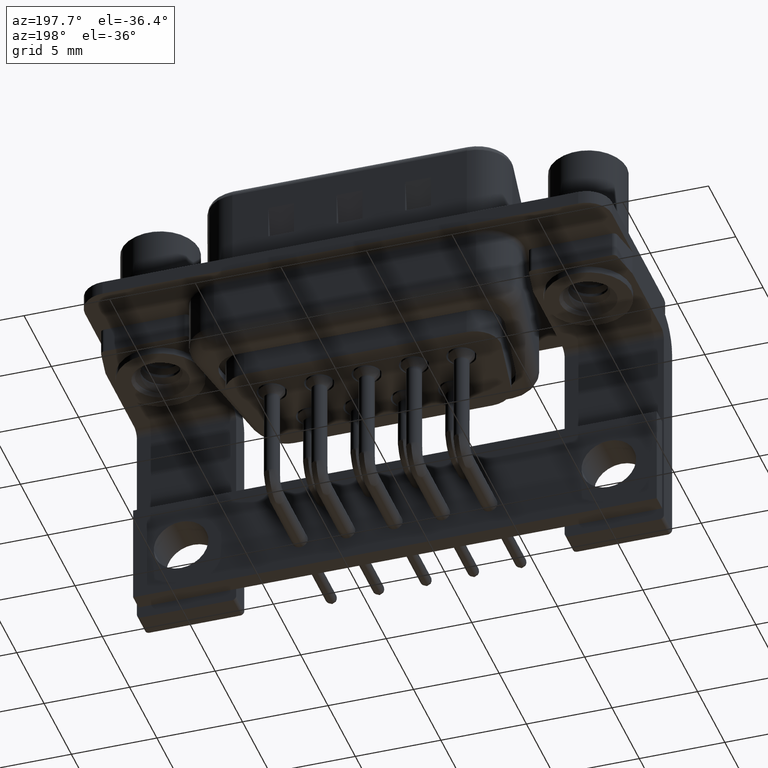
[diagram: clean part render]
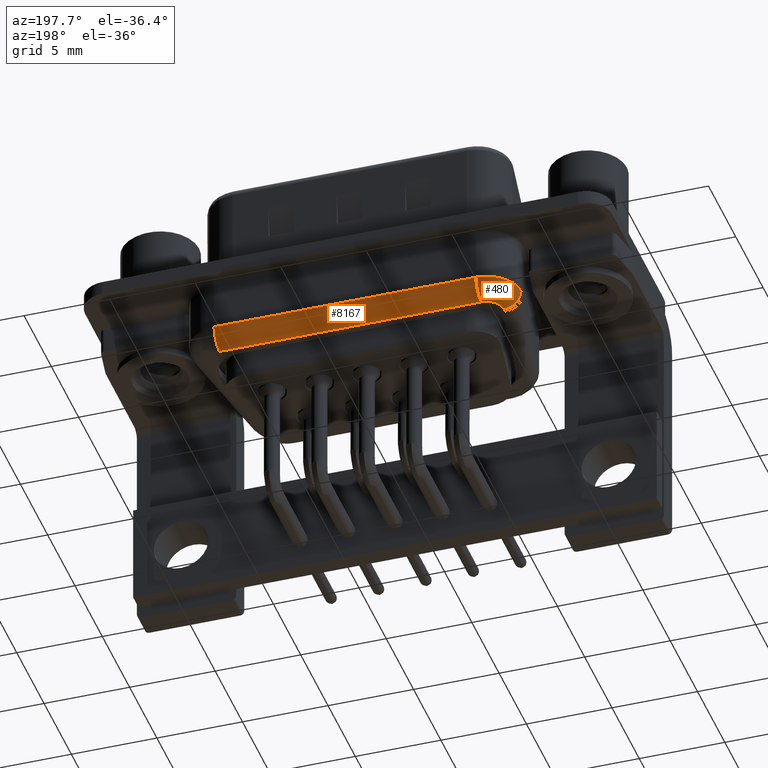
[diagram: same view with one multi-face feature highlighted, each face labeled with its STEP entity id]
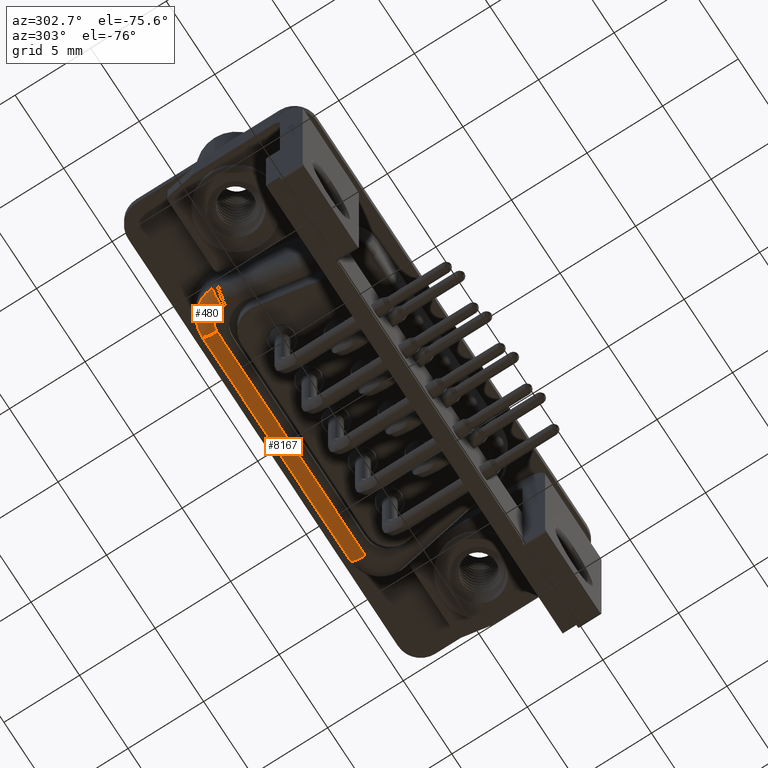
[diagram: same view with one multi-face feature highlighted, each face labeled with its STEP entity id]
A machine part, auxiliary view. The highlighted faces form ONE feature: a constant-radius fillet chain: 2 tangent blend faces with common blend radius 1 mm. The faces share edges in the B-rep.
A second angle (auxiliary view) of the same feature is appended — it is thin or edge-on in the first view.
Their STEP definitions:
[1] entity #8167 (Cylinder):
#1219 = ORIENTED_EDGE ( 'NONE', *, *, #12657, .F. ) ;
#1310 = ORIENTED_EDGE ( 'NONE', *, *, #5093, .F. ) ;
#2117 = CYLINDRICAL_SURFACE ( 'NONE', #14743, 1.000000000000000000 ) ;
#3088 = VERTEX_POINT ( 'NONE', #18647 ) ;
#4247 = VERTEX_POINT ( 'NONE', #17074 ) ;
#5093 = EDGE_CURVE ( 'NONE', #18664, #13876, #8900, .T. ) ;
#5285 = CARTESIAN_POINT ( 'NONE',  ( 20.15000000000000200, 5.399999999999995900, -3.499999999999999600 ) ) ;
#5904 = VECTOR ( 'NONE', #19404, 1000.000000000000000 ) ;
#6852 = EDGE_CURVE ( 'NONE', #4247, #3088, #10484, .T. ) ;
#7320 = CARTESIAN_POINT ( 'NONE',  ( 6.049023468817512800, 4.399999999999995900, -4.500000000000000000 ) ) ;
#7729 = DIRECTION ( 'NONE',  ( -1.000000000000000000, 0.0000000000000000000, 0.0000000000000000000 ) ) ;
#8167 = ADVANCED_FACE ( 'NONE', ( #11827 ), #2117, .T. ) ;
#8351 = AXIS2_PLACEMENT_3D ( 'NONE', #18063, #7729, #19828 ) ;
#8428 = CARTESIAN_POINT ( 'NONE',  ( 20.15000000000000200, 5.399999999999995900, -3.499999999999999600 ) ) ;
#8482 = CIRCLE ( 'NONE', #8351, 1.000000000000000000 ) ;
#8900 = LINE ( 'NONE', #8428, #13505 ) ;
#9171 = ORIENTED_EDGE ( 'NONE', *, *, #11028, .T. ) ;
#10248 = DIRECTION ( 'NONE',  ( -1.000000000000000000, 0.0000000000000000000, 0.0000000000000000000 ) ) ;
#10484 = LINE ( 'NONE', #7320, #5904 ) ;
#11028 = EDGE_CURVE ( 'NONE', #18664, #3088, #8482, .T. ) ;
#11329 = CIRCLE ( 'NONE', #11569, 1.000000000000000000 ) ;
#11569 = AXIS2_PLACEMENT_3D ( 'NONE', #20640, #10248, #22401 ) ;
#11827 = FACE_OUTER_BOUND ( 'NONE', #14803, .T. ) ;
#12657 = EDGE_CURVE ( 'NONE', #13876, #4247, #11329, .T. ) ;
#12944 = ORIENTED_EDGE ( 'NONE', *, *, #6852, .F. ) ;
#13109 = DIRECTION ( 'NONE',  ( 1.000000000000000000, 0.0000000000000000000, 0.0000000000000000000 ) ) ;
#13505 = VECTOR ( 'NONE', #22330, 1000.000000000000000 ) ;
#13876 = VERTEX_POINT ( 'NONE', #16981 ) ;
#14743 = AXIS2_PLACEMENT_3D ( 'NONE', #21776, #13109, #14776 ) ;
#14776 = DIRECTION ( 'NONE',  ( 0.0000000000000000000, 0.0000000000000000000, -1.000000000000000000 ) ) ;
#14803 = EDGE_LOOP ( 'NONE', ( #9171, #12944, #1219, #1310 ) ) ;
#16981 = CARTESIAN_POINT ( 'NONE',  ( 4.850000000000006800, 5.399999999999998600, -3.499999999999999600 ) ) ;
#17074 = CARTESIAN_POINT ( 'NONE',  ( 4.850000000000006800, 4.399999999999995900, -4.500000000000000000 ) ) ;
#18063 = CARTESIAN_POINT ( 'NONE',  ( 20.15000000000000200, 4.399999999999998600, -3.499999999999999600 ) ) ;
#18647 = CARTESIAN_POINT ( 'NONE',  ( 20.15000000000000200, 4.399999999999995900, -4.500000000000000000 ) ) ;
#18664 = VERTEX_POINT ( 'NONE', #5285 ) ;
#19404 = DIRECTION ( 'NONE',  ( 1.000000000000000000, 0.0000000000000000000, 0.0000000000000000000 ) ) ;
#19828 = DIRECTION ( 'NONE',  ( 0.0000000000000000000, 0.0000000000000000000, 1.000000000000000000 ) ) ;
#20640 = CARTESIAN_POINT ( 'NONE',  ( 4.850000000000006800, 4.399999999999995900, -3.499999999999999600 ) ) ;
#21776 = CARTESIAN_POINT ( 'NONE',  ( 6.049023468817512800, 4.399999999999995900, -3.499999999999999600 ) ) ;
#22330 = DIRECTION ( 'NONE',  ( -1.000000000000000000, -0.0000000000000000000, -0.0000000000000000000 ) ) ;
#22401 = DIRECTION ( 'NONE',  ( 0.0000000000000000000, 0.0000000000000000000, 1.000000000000000000 ) ) ;
[2] entity #480 (Torus):
#480 = ADVANCED_FACE ( 'NONE', ( #19820 ), #10607, .T. ) ;
#1368 = DIRECTION ( 'NONE',  ( 1.000000000000000000, 0.0000000000000000000, 0.0000000000000000000 ) ) ;
#1673 = CARTESIAN_POINT ( 'NONE',  ( 4.850000000000006800, 3.399999999999995900, -3.499999999999999600 ) ) ;
#2394 = EDGE_CURVE ( 'NONE', #9772, #4247, #10799, .T. ) ;
#3089 = DIRECTION ( 'NONE',  ( -1.000000000000000000, 0.0000000000000000000, 0.0000000000000000000 ) ) ;
#3177 = AXIS2_PLACEMENT_3D ( 'NONE', #22107, #11703, #1368 ) ;
#3309 = CARTESIAN_POINT ( 'NONE',  ( 3.850000000000004100, 3.399999999999995900, -3.499999999999999600 ) ) ;
#3499 = DIRECTION ( 'NONE',  ( 1.224646799147353200E-016, 1.000000000000000000, 0.0000000000000000000 ) ) ;
#4247 = VERTEX_POINT ( 'NONE', #17074 ) ;
#4279 = EDGE_CURVE ( 'NONE', #9772, #4747, #21976, .T. ) ;
#4328 = AXIS2_PLACEMENT_3D ( 'NONE', #1673, #15605, #12518 ) ;
#4747 = VERTEX_POINT ( 'NONE', #7869 ) ;
#6540 = AXIS2_PLACEMENT_3D ( 'NONE', #3309, #3499, #3089 ) ;
#7181 = EDGE_LOOP ( 'NONE', ( #7531, #19153, #11402, #11009 ) ) ;
#7531 = ORIENTED_EDGE ( 'NONE', *, *, #2394, .F. ) ;
#7869 = CARTESIAN_POINT ( 'NONE',  ( 2.850000000000004100, 3.399999999999995900, -3.499999999999999600 ) ) ;
#8647 = CARTESIAN_POINT ( 'NONE',  ( 4.850000000000006800, 3.399999999999995900, -4.500000000000000000 ) ) ;
#8722 = DIRECTION ( 'NONE',  ( -0.0000000000000000000, 0.0000000000000000000, -1.000000000000000000 ) ) ;
#9108 = DIRECTION ( 'NONE',  ( 1.000000000000000000, 0.0000000000000000000, 0.0000000000000000000 ) ) ;
#9772 = VERTEX_POINT ( 'NONE', #14056 ) ;
#10162 = EDGE_CURVE ( 'NONE', #13876, #4747, #11504, .T. ) ;
#10248 = DIRECTION ( 'NONE',  ( -1.000000000000000000, 0.0000000000000000000, 0.0000000000000000000 ) ) ;
#10607 = TOROIDAL_SURFACE ( 'NONE', #4328, 1.000000000000003100, 1.000000000000000000 ) ;
#10799 = CIRCLE ( 'NONE', #14364, 1.000000000000002700 ) ;
#11009 = ORIENTED_EDGE ( 'NONE', *, *, #12657, .T. ) ;
#11329 = CIRCLE ( 'NONE', #11569, 1.000000000000000000 ) ;
#11402 = ORIENTED_EDGE ( 'NONE', *, *, #10162, .F. ) ;
#11504 = CIRCLE ( 'NONE', #3177, 2.000000000000003600 ) ;
#11569 = AXIS2_PLACEMENT_3D ( 'NONE', #20640, #10248, #22401 ) ;
#11703 = DIRECTION ( 'NONE',  ( 0.0000000000000000000, -0.0000000000000000000, 1.000000000000000000 ) ) ;
#12518 = DIRECTION ( 'NONE',  ( 1.000000000000000000, 0.0000000000000000000, 0.0000000000000000000 ) ) ;
#12657 = EDGE_CURVE ( 'NONE', #13876, #4247, #11329, .T. ) ;
#13876 = VERTEX_POINT ( 'NONE', #16981 ) ;
#14056 = CARTESIAN_POINT ( 'NONE',  ( 3.850000000000004100, 3.399999999999995900, -4.500000000000000000 ) ) ;
#14364 = AXIS2_PLACEMENT_3D ( 'NONE', #8647, #8722, #9108 ) ;
#15605 = DIRECTION ( 'NONE',  ( 0.0000000000000000000, -0.0000000000000000000, 1.000000000000000000 ) ) ;
#16981 = CARTESIAN_POINT ( 'NONE',  ( 4.850000000000006800, 5.399999999999998600, -3.499999999999999600 ) ) ;
#17074 = CARTESIAN_POINT ( 'NONE',  ( 4.850000000000006800, 4.399999999999995900, -4.500000000000000000 ) ) ;
#19153 = ORIENTED_EDGE ( 'NONE', *, *, #4279, .T. ) ;
#19820 = FACE_OUTER_BOUND ( 'NONE', #7181, .T. ) ;
#20640 = CARTESIAN_POINT ( 'NONE',  ( 4.850000000000006800, 4.399999999999995900, -3.499999999999999600 ) ) ;
#21976 = CIRCLE ( 'NONE', #6540, 1.000000000000000000 ) ;
#22107 = CARTESIAN_POINT ( 'NONE',  ( 4.850000000000006800, 3.399999999999995900, -3.499999999999999600 ) ) ;
#22401 = DIRECTION ( 'NONE',  ( 0.0000000000000000000, 0.0000000000000000000, 1.000000000000000000 ) ) ;